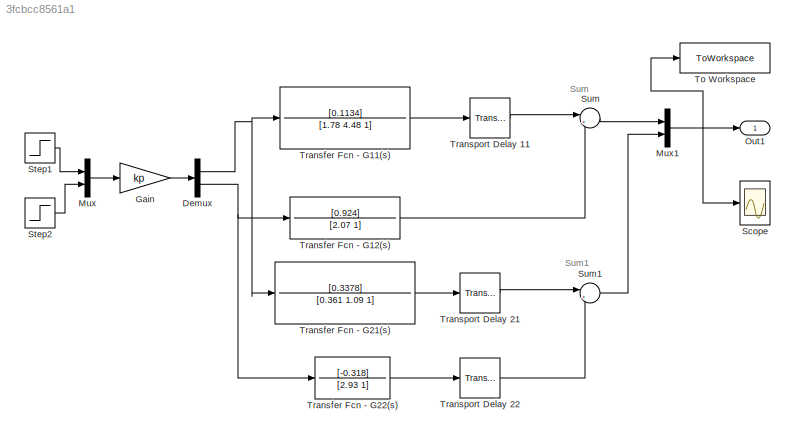
MODEL slx_3fcbcc8561a1
KIND model
CONFIG AbsTol = auto
CONFIG EnableMultiTasking = off
CONFIG FixedStep = auto
CONFIG MaxStep = auto
CONFIG MinStep = auto
CONFIG RelTol = 1e-3
CONFIG SampleTimeConstraint = Unconstrained
CONFIG SolverName = VariableStepAuto
CONFIG StartTime = 0.0
CONFIG StopTime = 20
WORKSPACE source: mxarray member
WORKSPACE kp = [1 0 0 1]
BLOCK [Demux] Demux
  Outputs = 2
  Ports = [1, 2]
BLOCK [Gain] Gain
  Gain = kp
  Multiplication = Matrix(K*u)
BLOCK [Mux] Mux
  DisplayOption = bar
  Inputs = 2
  Ports = [2, 1]
BLOCK [Mux] Mux1
  DisplayOption = bar
  Inputs = 2
  Ports = [2, 1]
BLOCK [Outport] Out1
BLOCK [Scope] Scope
  Floating = off
  NumInputPorts = 1
  Ports = [1]
  ScopeSpecificationString = Simulink.scopes.TimeScopeBlockCfg('CurrentConfiguration', extmgr.ConfigurationSet(extmgr.Configuration('Core','General UI',true),extmgr.Configuration('Core','Source UI',true),extmgr.Configuration('Sources','WiredSimulink',true),extmgr.Configuration('Visuals','Time Domain',true,'SerializedDisplays',{struct('MinYLimReal','-0.12949','MaxYLimReal','1.16542','YLabelReal','','MinYLimMag','0.00000','MaxY...<+1382ch>
BLOCK [Step] Step1
  SampleTime = 0
BLOCK [Step] Step2
  SampleTime = 0
BLOCK [Sum] Sum
  Inputs = |++
  Ports = [2, 1]
BLOCK [Sum] Sum1
  Inputs = |++
  Ports = [2, 1]
BLOCK [ToWorkspace] To Workspace
  FixptAsFi = on
  MaxDataPoints = inf
  Ports = [1]
  SampleTime = -1
  SaveFormat = Structure With Time
  VariableName = simout
BLOCK [TransferFcn] Transfer Fcn - G11(s)
  ContinuousStateAttributes = 'G11'
  Denominator = [1.78 4.48 1]
  Numerator = [0.1134]
BLOCK [TransferFcn] Transfer Fcn - G12(s)
  Denominator = [2.07 1]
  Numerator = [0.924]
BLOCK [TransferFcn] Transfer Fcn - G21(s)
  Denominator = [0.361 1.09 1]
  Numerator = [0.3378]
BLOCK [TransferFcn] Transfer Fcn - G22(s)
  Denominator = [2.93 1]
  Numerator = [-0.318]
BLOCK [TransportDelay] Transport Delay 11
  DelayTime = 0.72
  Ports = [1, 1]
BLOCK [TransportDelay] Transport Delay 21
  DelayTime = 0.3
  Ports = [1, 1]
BLOCK [TransportDelay] Transport Delay 22
  DelayTime = 1.29
  Ports = [1, 1]
ANNOTATION (root): Sum1
ANNOTATION (root): Sum
NET Demux:1 -> Transfer Fcn - G11(s):1, Transfer Fcn - G21(s):1
NET Demux:2 -> Transfer Fcn - G12(s):1, Transfer Fcn - G22(s):1
LINE Gain:1 -> Demux:1
NET Mux1:1 -> Out1:1, Scope:1, To Workspace:1
LINE Mux:1 -> Gain:1
LINE Step1:1 -> Mux:1
LINE Step2:1 -> Mux:2
LINE Sum1:1 -> Mux1:2
LINE Sum:1 -> Mux1:1
LINE Transfer Fcn - G11(s):1 -> Transport Delay 11:1
LINE Transfer Fcn - G12(s):1 -> Sum:2
LINE Transfer Fcn - G21(s):1 -> Transport Delay 21:1
LINE Transfer Fcn - G22(s):1 -> Transport Delay 22:1
LINE Transport Delay 11:1 -> Sum:1
LINE Transport Delay 21:1 -> Sum1:1
LINE Transport Delay 22:1 -> Sum1:2
note: NET lines group one-source signal fan-out (src -> all destinations, sorted); 1:1 wires keep LINE
